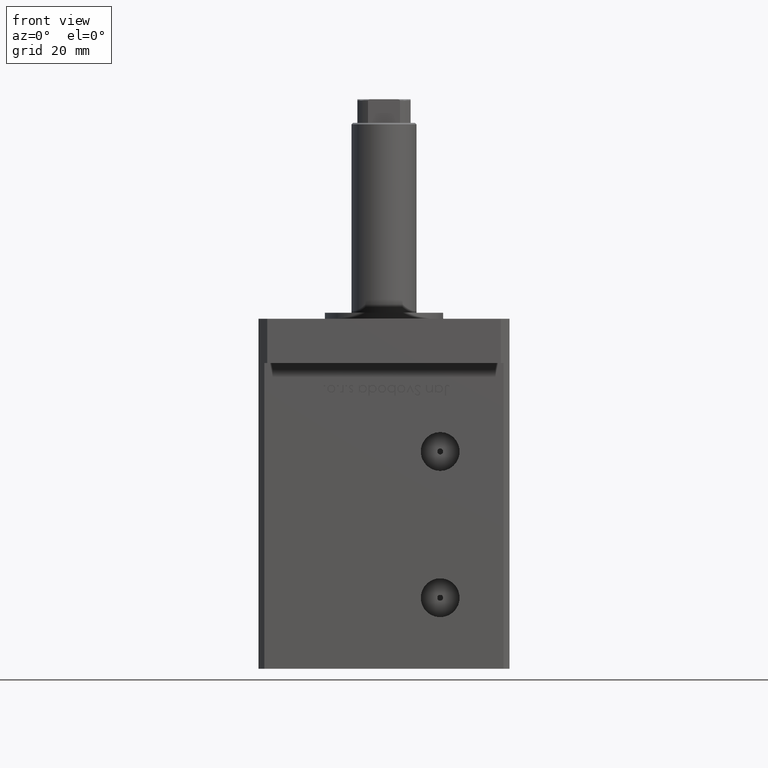
[diagram: clean part render]
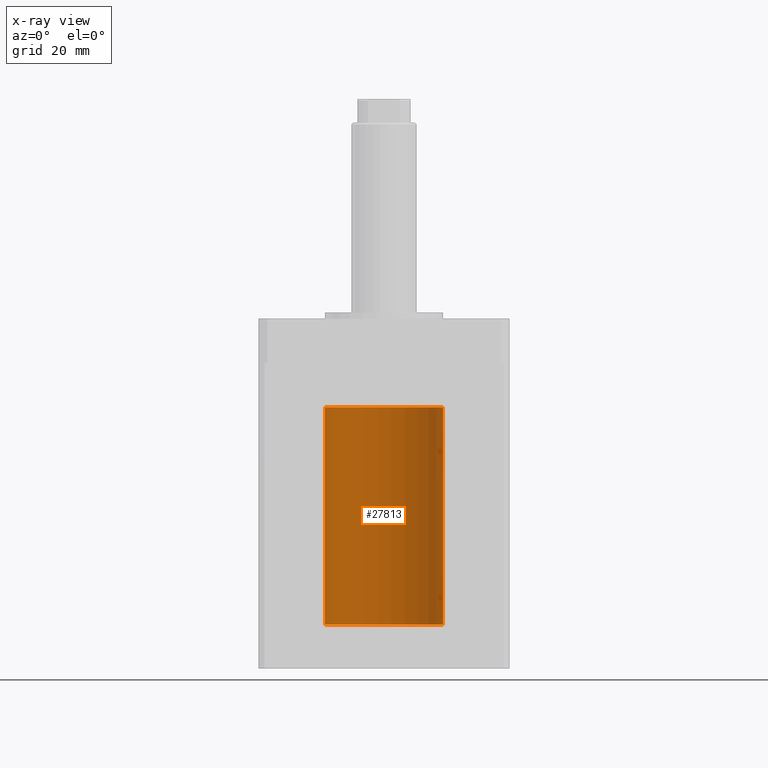
[diagram: x-ray — body ghosted, one internal face saturated and labeled with its STEP entity id]
A machine part, front view, then the same camera in x-ray: the body is ghosted and one INTERNAL B-rep face — a face not visible from any outside direction — is saturated and labeled: STEP entity #27813.
In plain terms, the highlighted cylindrical surface (partial cylindrical patch) has radius 20 mm, axis along (-0, -0, -1).
Its self-contained STEP definition (entity closure, byte-faithful):
#2206 = VECTOR ( 'NONE', #7928, 1000.000000000000000 ) ;
#3451 = ORIENTED_EDGE ( 'NONE', *, *, #4307, .F. ) ;
#3690 = VERTEX_POINT ( 'NONE', #29700 ) ;
#4205 = DIRECTION ( 'NONE',  ( -1.000000000000000000, 0.000000000000000000, 0.000000000000000000 ) ) ;
#4307 = EDGE_CURVE ( 'NONE', #3690, #21020, #36374, .T. ) ;
#7928 = DIRECTION ( 'NONE',  ( -0.000000000000000000, -0.000000000000000000, -1.000000000000000000 ) ) ;
#10879 = CARTESIAN_POINT ( 'NONE',  ( 20.00000000000000000, 2.449293598294706513E-15, 73.50000000000000000 ) ) ;
#12202 = DIRECTION ( 'NONE',  ( 1.000000000000000000, 0.000000000000000000, 0.000000000000000000 ) ) ;
#15731 = CARTESIAN_POINT ( 'NONE',  ( 0.000000000000000000, 0.000000000000000000, 0.000000000000000000 ) ) ;
#16881 = DIRECTION ( 'NONE',  ( -0.000000000000000000, 0.000000000000000000, 1.000000000000000000 ) ) ;
#18531 = EDGE_CURVE ( 'NONE', #3690, #28138, #42370, .T. ) ;
#19219 = FACE_OUTER_BOUND ( 'NONE', #46136, .T. ) ;
#20649 = VERTEX_POINT ( 'NONE', #46029 ) ;
#21020 = VERTEX_POINT ( 'NONE', #35579 ) ;
#23328 = AXIS2_PLACEMENT_3D ( 'NONE', #30207, #16881, #42676 ) ;
#24104 = CIRCLE ( 'NONE', #49953, 20.00000000000000000 ) ;
#25852 = CARTESIAN_POINT ( 'NONE',  ( -20.00000000000000000, 0.000000000000000000, 73.50000000000000000 ) ) ;
#27283 = EDGE_CURVE ( 'NONE', #28138, #20649, #35896, .T. ) ;
#27813 = ADVANCED_FACE ( 'NONE', ( #19219 ), #37299, .F. ) ;
#28138 = VERTEX_POINT ( 'NONE', #25852 ) ;
#29700 = CARTESIAN_POINT ( 'NONE',  ( 20.00000000000000000, 2.449293598294706513E-15, 73.50000000000000000 ) ) ;
#30207 = CARTESIAN_POINT ( 'NONE',  ( 0.000000000000000000, 0.000000000000000000, 73.50000000000000000 ) ) ;
#32302 = DIRECTION ( 'NONE',  ( -0.000000000000000000, 0.000000000000000000, 1.000000000000000000 ) ) ;
#35579 = CARTESIAN_POINT ( 'NONE',  ( 20.00000000000000000, 2.449293598294706513E-15, 0.000000000000000000 ) ) ;
#35896 = LINE ( 'NONE', #45099, #2206 ) ;
#36300 = EDGE_CURVE ( 'NONE', #21020, #20649, #24104, .T. ) ;
#36374 = LINE ( 'NONE', #10879, #47298 ) ;
#37299 = CYLINDRICAL_SURFACE ( 'NONE', #39420, 20.00000000000000000 ) ;
#39420 = AXIS2_PLACEMENT_3D ( 'NONE', #52061, #53582, #4205 ) ;
#42370 = CIRCLE ( 'NONE', #23328, 20.00000000000000000 ) ;
#42676 = DIRECTION ( 'NONE',  ( 1.000000000000000000, 0.000000000000000000, 0.000000000000000000 ) ) ;
#42794 = ORIENTED_EDGE ( 'NONE', *, *, #18531, .T. ) ;
#43027 = ORIENTED_EDGE ( 'NONE', *, *, #27283, .T. ) ;
#45099 = CARTESIAN_POINT ( 'NONE',  ( -20.00000000000000000, 0.000000000000000000, 73.50000000000000000 ) ) ;
#45674 = ORIENTED_EDGE ( 'NONE', *, *, #36300, .F. ) ;
#46029 = CARTESIAN_POINT ( 'NONE',  ( -20.00000000000000000, 0.000000000000000000, 0.000000000000000000 ) ) ;
#46136 = EDGE_LOOP ( 'NONE', ( #3451, #42794, #43027, #45674 ) ) ;
#47298 = VECTOR ( 'NONE', #48328, 1000.000000000000000 ) ;
#48328 = DIRECTION ( 'NONE',  ( -0.000000000000000000, -0.000000000000000000, -1.000000000000000000 ) ) ;
#49953 = AXIS2_PLACEMENT_3D ( 'NONE', #15731, #32302, #12202 ) ;
#52061 = CARTESIAN_POINT ( 'NONE',  ( 0.000000000000000000, 0.000000000000000000, 73.50000000000000000 ) ) ;
#53582 = DIRECTION ( 'NONE',  ( -0.000000000000000000, -0.000000000000000000, -1.000000000000000000 ) ) ;